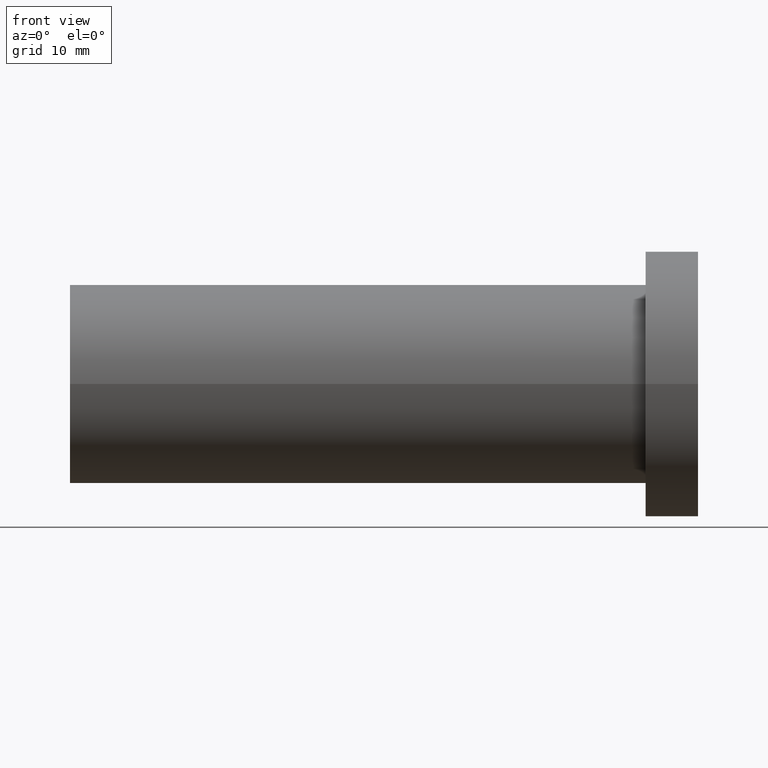
[diagram: clean part render]
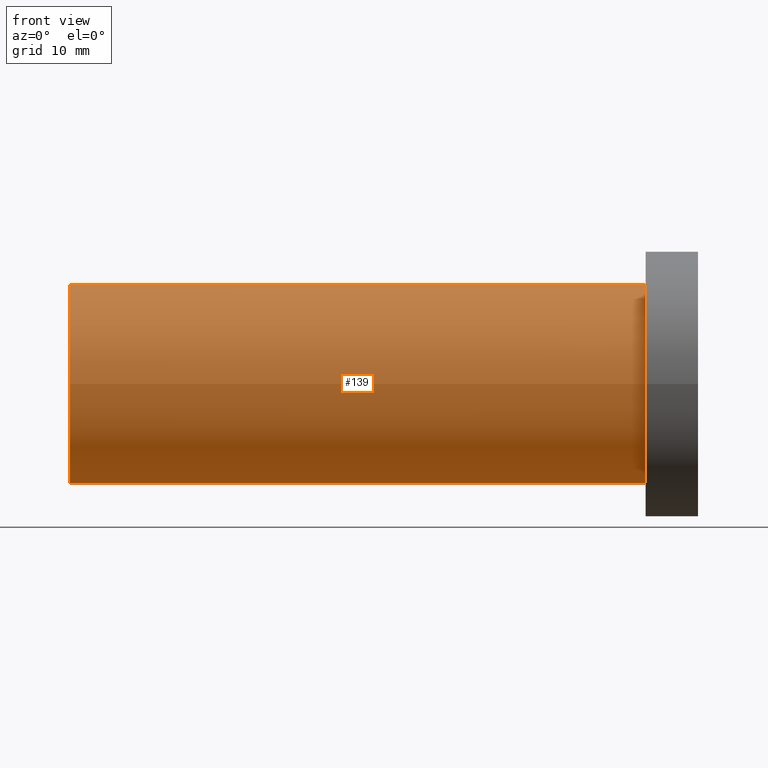
[diagram: same view with one face highlighted and labeled with its STEP entity id]
A machine part, front view. The second image highlights one B-rep face of the part: STEP entity #139.
In plain terms, the highlighted cylindrical surface (bore or boss wall) has radius 9.525 mm, axis along (1, 0, 0).
Its self-contained STEP definition (entity closure, byte-faithful):
#34=FACE_OUTER_BOUND('',#49,.T.);
#49=EDGE_LOOP('',(#121,#122,#123,#124));
#54=LINE('',#265,#59);
#59=VECTOR('',#229,9.52500000000001);
#63=CIRCLE('',#168,9.52500000000001);
#69=CIRCLE('',#181,9.52500000000001);
#73=VERTEX_POINT('',#240);
#79=VERTEX_POINT('',#262);
#84=EDGE_CURVE('',#73,#73,#63,.T.);
#93=EDGE_CURVE('',#79,#79,#69,.T.);
#94=EDGE_CURVE('',#73,#79,#54,.T.);
#121=ORIENTED_EDGE('',*,*,#84,.F.);
#122=ORIENTED_EDGE('',*,*,#94,.T.);
#123=ORIENTED_EDGE('',*,*,#93,.T.);
#124=ORIENTED_EDGE('',*,*,#94,.F.);
#129=CYLINDRICAL_SURFACE('',#182,9.52500000000001);
#139=ADVANCED_FACE('',(#34),#129,.T.);
#168=AXIS2_PLACEMENT_3D('',#241,#196,#197);
#181=AXIS2_PLACEMENT_3D('',#263,#225,#226);
#182=AXIS2_PLACEMENT_3D('',#264,#227,#228);
#196=DIRECTION('center_axis',(1.,0.,0.));
#197=DIRECTION('ref_axis',(0.,0.,-1.));
#225=DIRECTION('center_axis',(1.,0.,0.));
#226=DIRECTION('ref_axis',(0.,0.,-1.));
#227=DIRECTION('center_axis',(1.,0.,0.));
#228=DIRECTION('ref_axis',(0.,1.,0.));
#229=DIRECTION('',(-1.,0.,0.));
#240=CARTESIAN_POINT('',(-5.,-9.52500000000001,-1.16647607618786E-15));
#241=CARTESIAN_POINT('Origin',(-5.,0.,0.));
#262=CARTESIAN_POINT('',(-60.,-9.52500000000001,-1.16647607618786E-15));
#263=CARTESIAN_POINT('Origin',(-60.,0.,0.));
#264=CARTESIAN_POINT('Origin',(-32.5,0.,0.));
#265=CARTESIAN_POINT('',(-32.5,-9.52500000000001,-1.16647607618786E-15));